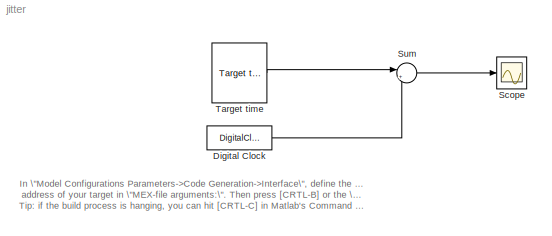
MODEL jitter
KIND model
BLOCK [DigitalClock] Digital Clock
  SID = 1
  SampleTime = 0.01
BLOCK [Scope] Scope
  Floating = off
  NumInputPorts = 1
  Ports = [1]
  SID = 4
  ScopeSpecificationString = Simulink.scopes.TimeScopeBlockCfg('CurrentConfiguration', extmgr.ConfigurationSet(extmgr.Configuration('Core','General UI',true),extmgr.Configuration('Core','Source UI',true),extmgr.Configuration('Sources','WiredSimulink',true,'DataLoggingSaveFormat','StructureWithTime','DataLoggingLimitDataPoints',true,'DataLoggingDecimation','1','DataLoggingDecimateData',true),extmgr.Configuration('Visuals','Tim...<+1655ch>
BLOCK [Sum] Sum
  Inputs = |+-
  Ports = [2, 1]
  SID = 2
BLOCK [Reference] Target time  REF=rpi_blkst/Target time  (lib defined in mdl_5f9edbe601a8, slx_830431f926a7)
  Ports = [0, 1]
  RTWMemSecDataConstants = Inherit from model
  RTWMemSecDataInternal = Inherit from model
  RTWMemSecDataParameters = Inherit from model
  RTWMemSecFuncExecute = Inherit from model
  RTWMemSecFuncInitTerm = Inherit from model
  SID = 5
  SourceBlock = rpi_blkst/Target time
  SourceProductName = RPI Blockset
  SourceType = RPI time
  rpi_mask_Ts = 0.01
ANNOTATION (root): In \"Model Configurations Parameters->Code Generation->Interface\", define the IP\naddress of your target in \"MEX-file arguments:\". Then press [CRTL-B] or the \"Build For Monitoring\" button. \nTip: if the build process is hanging, you can hit [CRTL-C] in Matlab's Command Window.
LINE Digital Clock:1 -> Sum:2
LINE Sum:1 -> Scope:1
LINE Target time:1 -> Sum:1
